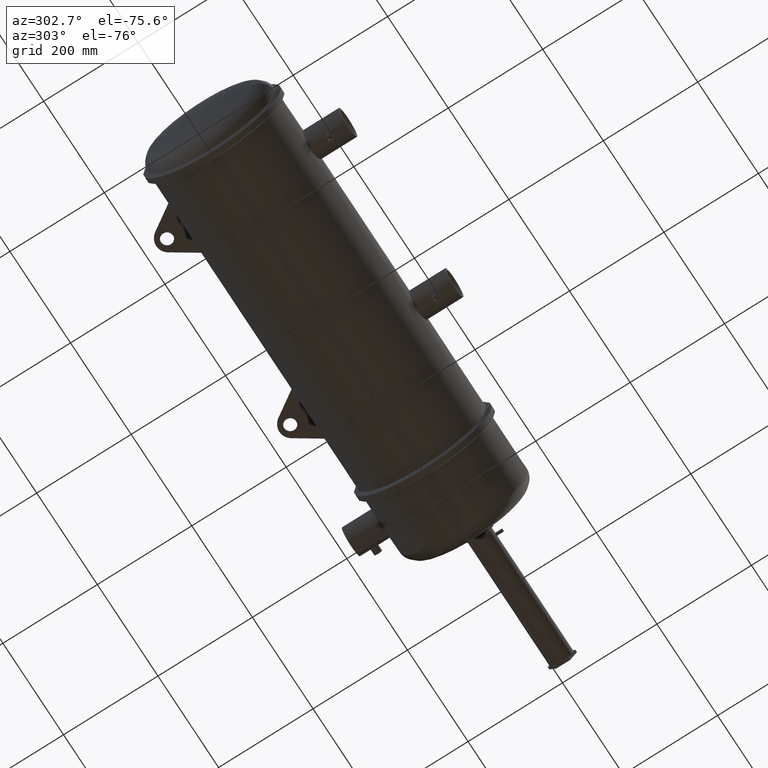
[diagram: clean part render]
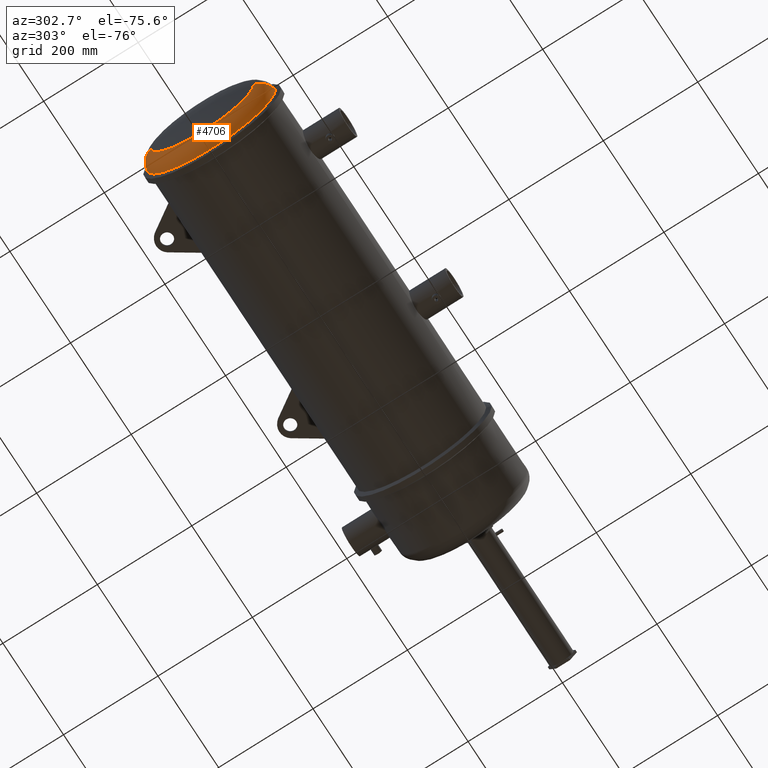
[diagram: same view with one face highlighted and labeled with its STEP entity id]
A machine part, auxiliary view. The second image highlights one B-rep face of the part: STEP entity #4706.
In plain terms, the highlighted toroidal blend (fillet) surface has major radius 100.766 mm and minor (blend) radius 36.1885 mm.
Its self-contained STEP definition (entity closure, byte-faithful):
#158 = CARTESIAN_POINT ( 'NONE',  ( 1.613123103460103500, -5.368251224921574600, 6.807965802029220100E-016 ) ) ;
#211 = ORIENTED_EDGE ( 'NONE', *, *, #1718, .F. ) ;
#239 = EDGE_CURVE ( 'NONE', #675, #3155, #1805, .T. ) ;
#489 = DIRECTION ( 'NONE',  ( 0.0000000000000000000, -1.000000000000000000, 0.0000000000000000000 ) ) ;
#675 = VERTEX_POINT ( 'NONE', #3733 ) ;
#938 = DIRECTION ( 'NONE',  ( -1.000000000000000000, 1.127465836012422800E-020, -0.0000000000000000000 ) ) ;
#1159 = EDGE_CURVE ( 'NONE', #1515, #3023, #5765, .T. ) ;
#1204 = DIRECTION ( 'NONE',  ( 0.0000000000000000000, -1.000000000000000000, -1.224646799147353500E-016 ) ) ;
#1468 = DIRECTION ( 'NONE',  ( -1.000000000000000000, 1.127465836012422800E-020, -0.0000000000000000000 ) ) ;
#1479 = FACE_OUTER_BOUND ( 'NONE', #1722, .T. ) ;
#1515 = VERTEX_POINT ( 'NONE', #3809 ) ;
#1631 = DIRECTION ( 'NONE',  ( -1.000000000000000000, 0.0000000000000000000, 0.0000000000000000000 ) ) ;
#1652 = DIRECTION ( 'NONE',  ( 0.0000000000000000000, -0.0000000000000000000, -1.000000000000000000 ) ) ;
#1718 = EDGE_CURVE ( 'NONE', #675, #1515, #4481, .T. ) ;
#1722 = EDGE_LOOP ( 'NONE', ( #211, #4245, #2254, #4358 ) ) ;
#1727 = CARTESIAN_POINT ( 'NONE',  ( 1.852598838839922800, 0.003374638380548222000, 0.0000000000000000000 ) ) ;
#1803 = EDGE_CURVE ( 'NONE', #3155, #3023, #2075, .T. ) ;
#1805 = CIRCLE ( 'NONE', #5100, 5.371625863302123900 ) ;
#1868 = AXIS2_PLACEMENT_3D ( 'NONE', #1727, #4949, #5415 ) ;
#2075 = CIRCLE ( 'NONE', #3613, 1.424746040561550000 ) ;
#2194 = CARTESIAN_POINT ( 'NONE',  ( 0.4607254188935711600, -4.268060785607833200, 0.0000000000000000000 ) ) ;
#2234 = AXIS2_PLACEMENT_3D ( 'NONE', #2706, #938, #489 ) ;
#2254 = ORIENTED_EDGE ( 'NONE', *, *, #1803, .T. ) ;
#2706 = CARTESIAN_POINT ( 'NONE',  ( 0.4607254188935711600, 0.003374638380548247100, 0.0000000000000000000 ) ) ;
#3023 = VERTEX_POINT ( 'NONE', #2194 ) ;
#3155 = VERTEX_POINT ( 'NONE', #158 ) ;
#3613 = AXIS2_PLACEMENT_3D ( 'NONE', #5816, #1652, #1631 ) ;
#3733 = CARTESIAN_POINT ( 'NONE',  ( 1.613123103460103500, 5.375000501682672300, 0.0000000000000000000 ) ) ;
#3807 = CARTESIAN_POINT ( 'NONE',  ( 1.852598838839922800, 3.970524566587978900, 4.858357461316882200E-016 ) ) ;
#3809 = CARTESIAN_POINT ( 'NONE',  ( 0.4607254188935711600, 4.274810062368930000, 5.904672069731034500E-016 ) ) ;
#3996 = DIRECTION ( 'NONE',  ( -1.380747427220608200E-036, -1.224646799147353200E-016, 1.000000000000000000 ) ) ;
#4245 = ORIENTED_EDGE ( 'NONE', *, *, #239, .T. ) ;
#4358 = ORIENTED_EDGE ( 'NONE', *, *, #1159, .F. ) ;
#4481 = CIRCLE ( 'NONE', #5228, 1.424746040561550000 ) ;
#4678 = CARTESIAN_POINT ( 'NONE',  ( 1.613123103460103500, 0.003374638380548247100, 0.0000000000000000000 ) ) ;
#4706 = ADVANCED_FACE ( 'NONE', ( #1479 ), #5313, .T. ) ;
#4949 = DIRECTION ( 'NONE',  ( -1.000000000000000000, 1.127465836012422800E-020, -0.0000000000000000000 ) ) ;
#5100 = AXIS2_PLACEMENT_3D ( 'NONE', #4678, #1468, #5551 ) ;
#5228 = AXIS2_PLACEMENT_3D ( 'NONE', #3807, #3996, #1204 ) ;
#5313 = TOROIDAL_SURFACE ( 'NONE', #1868, 3.967149928207430500, 1.424746040561550000 ) ;
#5415 = DIRECTION ( 'NONE',  ( -1.127465836012422800E-020, -1.000000000000000000, 0.0000000000000000000 ) ) ;
#5551 = DIRECTION ( 'NONE',  ( 0.0000000000000000000, -1.000000000000000000, 0.0000000000000000000 ) ) ;
#5765 = CIRCLE ( 'NONE', #2234, 4.271435423988381600 ) ;
#5816 = CARTESIAN_POINT ( 'NONE',  ( 1.852598838839922800, -3.963775289826882500, 0.0000000000000000000 ) ) ;